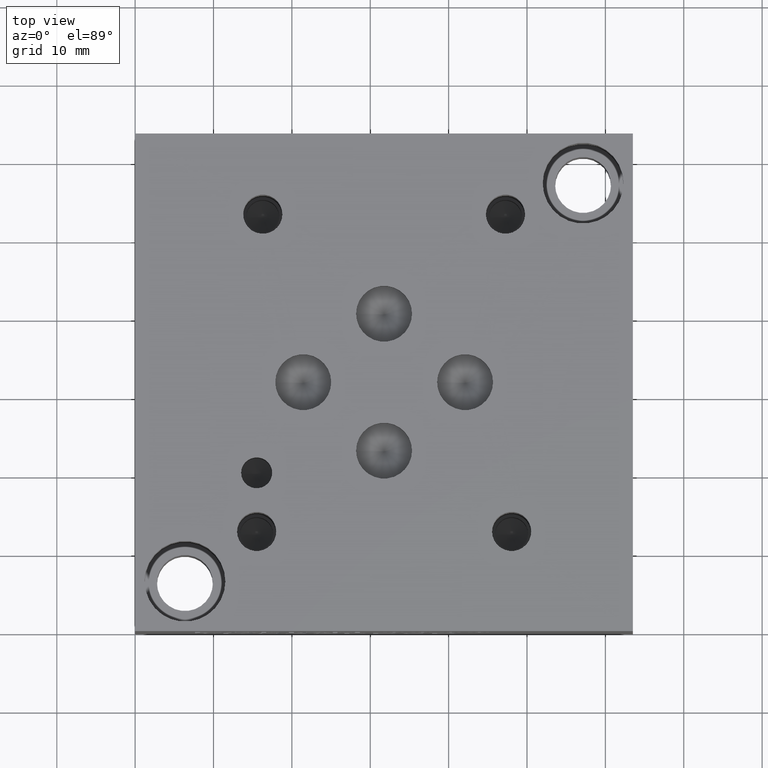
[diagram: clean part render]
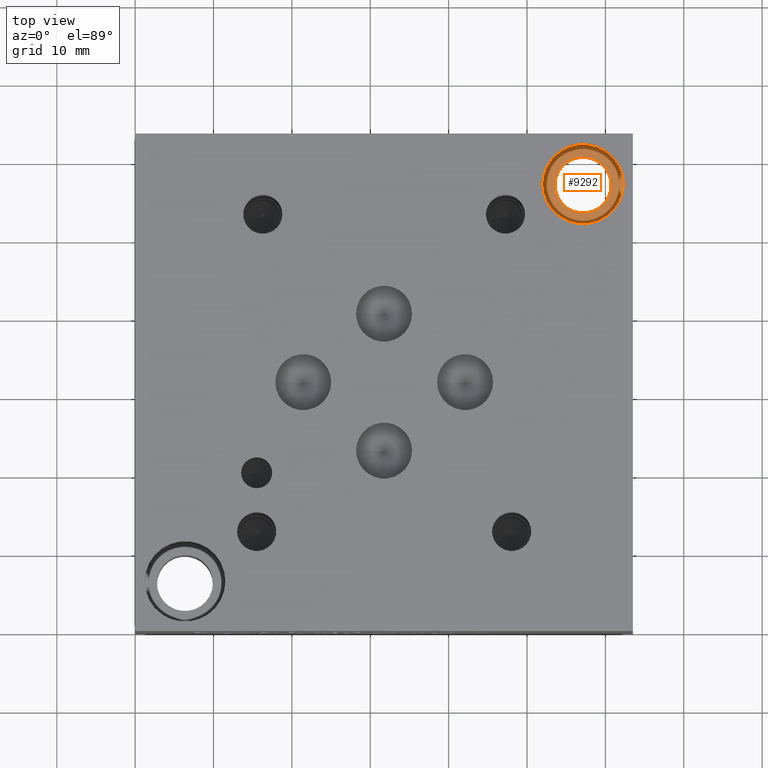
[diagram: same view with one face highlighted and labeled with its STEP entity id]
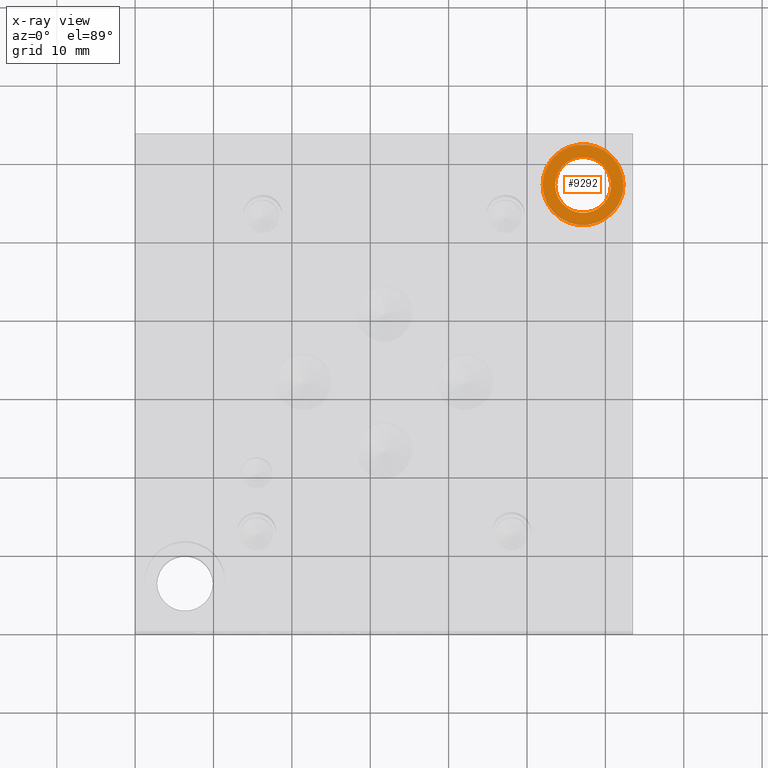
[diagram: x-ray of the same camera — body ghosted, the highlighted face saturated]
A machine part, top view. The second image highlights one B-rep face of the part: STEP entity #9292.
The next image is the same camera in x-ray: the body ghosted, the highlighted face saturated — about 5% of this face is hidden behind the body in this view.
In plain terms, the highlighted planar face has unit normal (0, 0, 1).
Its self-contained STEP definition (entity closure, byte-faithful):
#174=CIRCLE('',#9750,5.1562);
#175=CIRCLE('',#9751,5.1562);
#176=CIRCLE('',#9752,3.5687);
#239=FACE_BOUND('',#1525,.T.);
#527=PLANE('',#9749);
#996=FACE_OUTER_BOUND('',#1524,.T.);
#1524=EDGE_LOOP('',(#8232,#8233));
#1525=EDGE_LOOP('',(#8234));
#4450=VERTEX_POINT('',#15964);
#4451=VERTEX_POINT('',#15965);
#4452=VERTEX_POINT('',#15968);
#5723=EDGE_CURVE('',#4450,#4451,#174,.T.);
#5724=EDGE_CURVE('',#4451,#4450,#175,.T.);
#5725=EDGE_CURVE('',#4452,#4452,#176,.T.);
#8232=ORIENTED_EDGE('',*,*,#5723,.T.);
#8233=ORIENTED_EDGE('',*,*,#5724,.T.);
#8234=ORIENTED_EDGE('',*,*,#5725,.F.);
#9292=ADVANCED_FACE('',(#996,#239),#527,.T.);
#9749=AXIS2_PLACEMENT_3D('',#15963,#11506,#11507);
#9750=AXIS2_PLACEMENT_3D('',#15966,#11508,#11509);
#9751=AXIS2_PLACEMENT_3D('',#15967,#11510,#11511);
#9752=AXIS2_PLACEMENT_3D('',#15969,#11512,#11513);
#11506=DIRECTION('center_axis',(0.,0.,1.));
#11507=DIRECTION('ref_axis',(1.,0.,0.));
#11508=DIRECTION('center_axis',(0.,0.,1.));
#11509=DIRECTION('ref_axis',(1.,0.,0.));
#11510=DIRECTION('center_axis',(0.,0.,1.));
#11511=DIRECTION('ref_axis',(1.,0.,0.));
#11512=DIRECTION('center_axis',(0.,0.,1.));
#11513=DIRECTION('ref_axis',(1.,0.,0.));
#15963=CARTESIAN_POINT('Origin',(57.15,57.15,12.7));
#15964=CARTESIAN_POINT('',(62.3062,57.15,12.7));
#15965=CARTESIAN_POINT('',(51.9938,57.15,12.7));
#15966=CARTESIAN_POINT('Origin',(57.15,57.15,12.7));
#15967=CARTESIAN_POINT('Origin',(57.15,57.15,12.7));
#15968=CARTESIAN_POINT('',(53.5813,57.15,12.7));
#15969=CARTESIAN_POINT('Origin',(57.15,57.15,12.7));